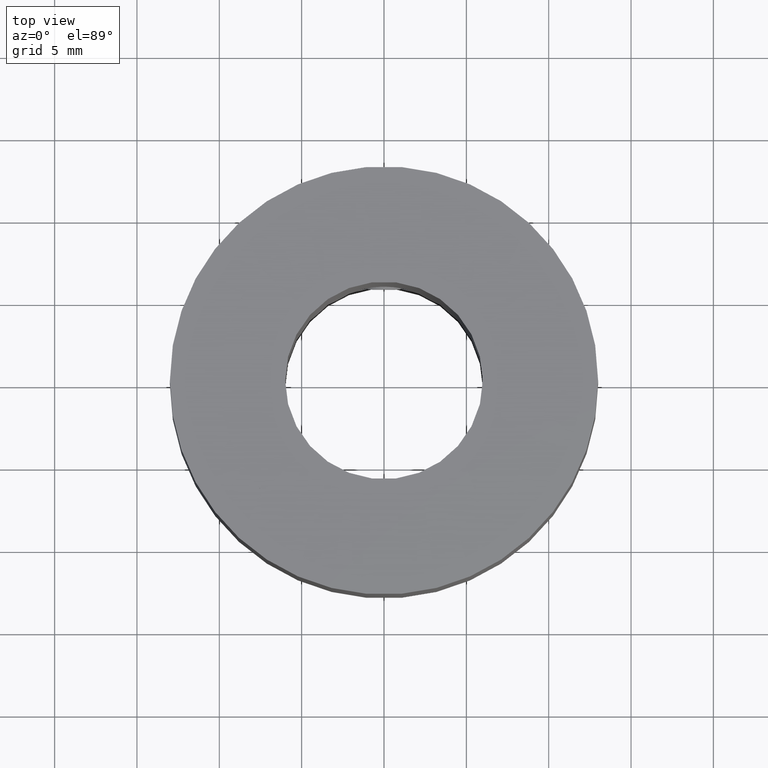
[diagram: clean part render]
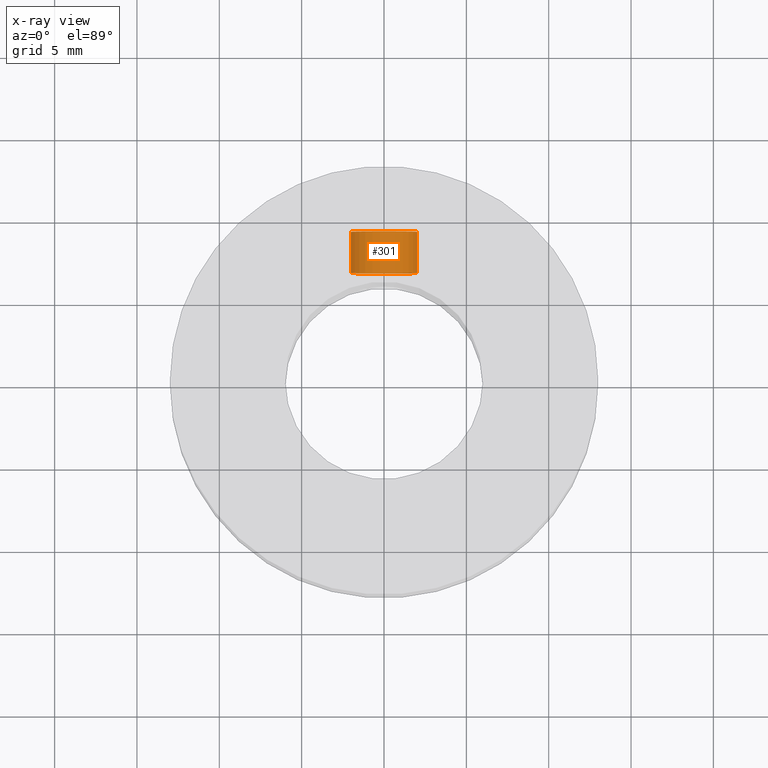
[diagram: x-ray — body ghosted, one internal face saturated and labeled with its STEP entity id]
A machine part, top view, then the same camera in x-ray: the body is ghosted and one INTERNAL B-rep face — a face not visible from any outside direction — is saturated and labeled: STEP entity #301.
In plain terms, the highlighted cylindrical surface (bore or boss wall) has radius 2 mm, axis along (0, 1, 0).
Its self-contained STEP definition (entity closure, byte-faithful):
#301 = ADVANCED_FACE( '', ( #390, #391 ), #392, .T. );
#390 = FACE_OUTER_BOUND( '', #482, .T. );
#391 = FACE_OUTER_BOUND( '', #483, .T. );
#392 = CYLINDRICAL_SURFACE( '', #484, 2.00000000000000 );
#482 = EDGE_LOOP( '', ( #694 ) );
#483 = EDGE_LOOP( '', ( #695 ) );
#484 = AXIS2_PLACEMENT_3D( '', #696, #697, #698 );
#694 = ORIENTED_EDGE( '', *, *, #740, .T. );
#695 = ORIENTED_EDGE( '', *, *, #761, .F. );
#696 = CARTESIAN_POINT( '', ( 2.97249713862233E-016, 5.85445622475296, -19.5000000000000 ) );
#697 = DIRECTION( '', ( 6.12323399573677E-017, 1.00000000000000, -0.000000000000000 ) );
#698 = DIRECTION( '', ( 1.00000000000000, -6.12323399573677E-017, 0.000000000000000 ) );
#740 = EDGE_CURVE( '', #826, #826, #827, .T. );
#761 = EDGE_CURVE( '', #860, #860, #861, .T. );
#826 = VERTEX_POINT( '', #1172 );
#827 = CIRCLE( '', #1173, 2.00000000000000 );
#860 = VERTEX_POINT( '', #1248 );
#861 = CIRCLE( '', #1249, 2.00000000000000 );
#1172 = CARTESIAN_POINT( '', ( 2.00000000000000, 9.35445622475296, -19.5000000000000 ) );
#1173 = AXIS2_PLACEMENT_3D( '', #1301, #1302, #1303 );
#1248 = CARTESIAN_POINT( '', ( 2.00000000000000, 6.85445622475296, -19.5000000000000 ) );
#1249 = AXIS2_PLACEMENT_3D( '', #1319, #1320, #1321 );
#1301 = CARTESIAN_POINT( '', ( 5.11562903713020E-016, 9.35445622475296, -19.5000000000000 ) );
#1302 = DIRECTION( '', ( -6.12323399573677E-017, -1.00000000000000, 0.000000000000000 ) );
#1303 = DIRECTION( '', ( 1.00000000000000, -6.12323399573677E-017, 0.000000000000000 ) );
#1319 = CARTESIAN_POINT( '', ( 3.58482053819601E-016, 6.85445622475296, -19.5000000000000 ) );
#1320 = DIRECTION( '', ( -6.12323399573677E-017, -1.00000000000000, 0.000000000000000 ) );
#1321 = DIRECTION( '', ( 1.00000000000000, -6.12323399573677E-017, 0.000000000000000 ) );